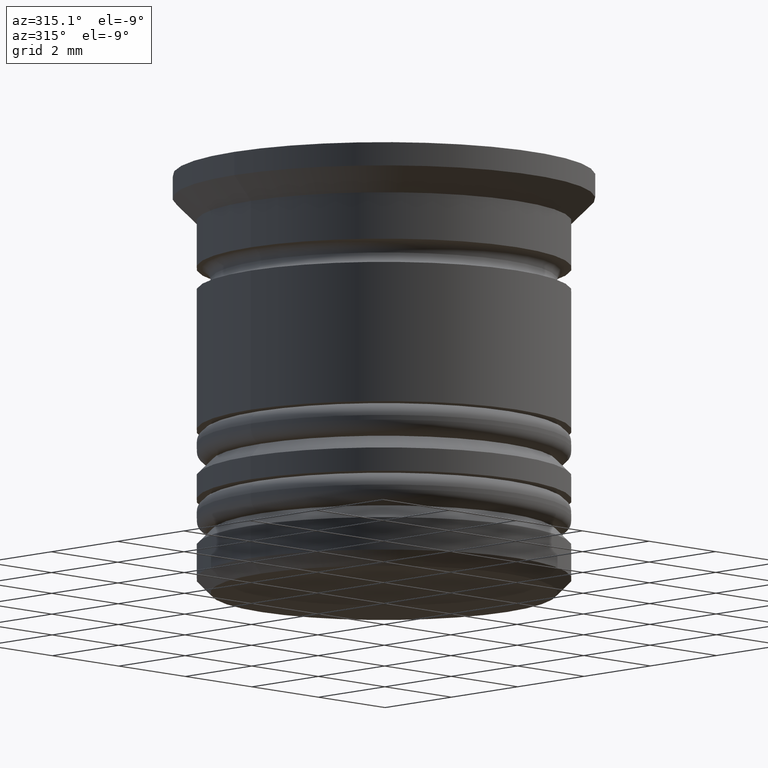
[diagram: clean part render]
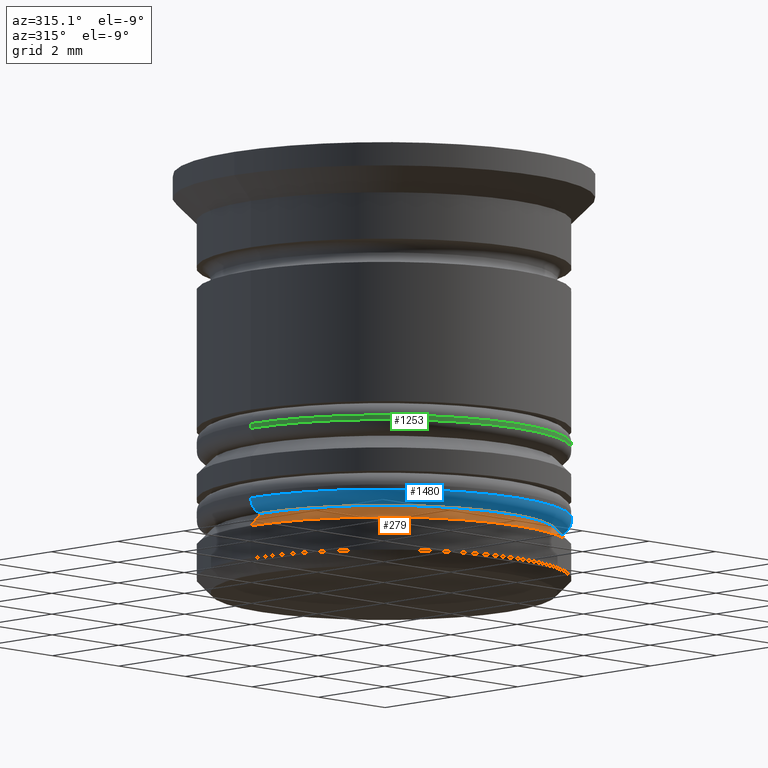
[diagram: same view with three faces highlighted in distinct colors, each labeled with its STEP entity id]
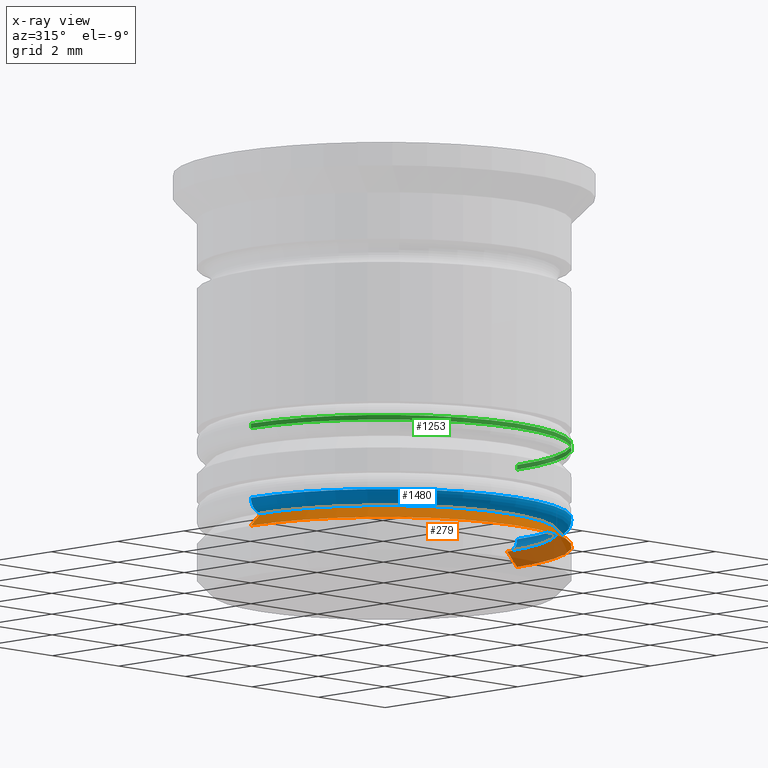
[diagram: x-ray of the same camera — body ghosted, the three highlighted faces saturated]
A machine part, auxiliary view with three faces highlighted in distinct colors.
The next image is the same camera in x-ray (body ghosted, the three faces saturated) — at least one of them is partly hidden behind the body in this view.
Their STEP definitions:

[orange] entity #279 — the highlighted conical surface has half-angle 45 deg.
#36 = VERTEX_POINT ( 'NONE', #1695 ) ;
#77 = ORIENTED_EDGE ( 'NONE', *, *, #1144, .F. ) ;
#101 = EDGE_LOOP ( 'NONE', ( #401, #1672, #1597, #77 ) ) ;
#250 = DIRECTION ( 'NONE',  ( -1.000000000000000000, 0.000000000000000000, 0.000000000000000000 ) ) ;
#279 = ADVANCED_FACE ( 'NONE', ( #729 ), #1567, .T. ) ;
#347 = CARTESIAN_POINT ( 'NONE',  ( 3.499999999999992450, 4.286263797015726734E-16, -7.500000000000000000 ) ) ;
#375 = AXIS2_PLACEMENT_3D ( 'NONE', #989, #1909, #865 ) ;
#401 = ORIENTED_EDGE ( 'NONE', *, *, #593, .F. ) ;
#412 = CIRCLE ( 'NONE', #675, 3.700000000000000178 ) ;
#436 = CARTESIAN_POINT ( 'NONE',  ( 4.000000000000000888, 0.000000000000000000, -8.000000000000003553 ) ) ;
#466 = CARTESIAN_POINT ( 'NONE',  ( 3.700000000000000178, 0.000000000000000000, -7.700000000000005507 ) ) ;
#509 = VECTOR ( 'NONE', #663, 1000.000000000000000 ) ;
#583 = DIRECTION ( 'NONE',  ( -0.000000000000000000, -0.000000000000000000, 1.000000000000000000 ) ) ;
#593 = EDGE_CURVE ( 'NONE', #1903, #959, #1547, .T. ) ;
#663 = DIRECTION ( 'NONE',  ( -0.7071067811865507924, 0.000000000000000000, -0.7071067811865441310 ) ) ;
#675 = AXIS2_PLACEMENT_3D ( 'NONE', #736, #583, #1674 ) ;
#729 = FACE_OUTER_BOUND ( 'NONE', #101, .T. ) ;
#736 = CARTESIAN_POINT ( 'NONE',  ( 0.000000000000000000, 0.000000000000000000, -7.700000000000005507 ) ) ;
#824 = DIRECTION ( 'NONE',  ( 0.7071067811865507924, 8.659560562354974766E-17, -0.7071067811865441310 ) ) ;
#865 = DIRECTION ( 'NONE',  ( -1.000000000000000000, 0.000000000000000000, 0.000000000000000000 ) ) ;
#959 = VERTEX_POINT ( 'NONE', #436 ) ;
#977 = CARTESIAN_POINT ( 'NONE',  ( -4.000000000000000888, 4.898587196589413815E-16, -8.000000000000003553 ) ) ;
#989 = CARTESIAN_POINT ( 'NONE',  ( 0.000000000000000000, 0.000000000000000000, -8.000000000000003553 ) ) ;
#1013 = LINE ( 'NONE', #1755, #509 ) ;
#1097 = EDGE_CURVE ( 'NONE', #36, #1723, #1013, .T. ) ;
#1144 = EDGE_CURVE ( 'NONE', #959, #1723, #1470, .T. ) ;
#1422 = EDGE_CURVE ( 'NONE', #36, #1903, #412, .T. ) ;
#1466 = DIRECTION ( 'NONE',  ( 0.000000000000000000, 0.000000000000000000, -1.000000000000000000 ) ) ;
#1470 = CIRCLE ( 'NONE', #375, 4.000000000000000888 ) ;
#1547 = LINE ( 'NONE', #347, #1997 ) ;
#1567 = CONICAL_SURFACE ( 'NONE', #1806, 3.499999999999992450, 0.7853981633974530530 ) ;
#1597 = ORIENTED_EDGE ( 'NONE', *, *, #1097, .T. ) ;
#1672 = ORIENTED_EDGE ( 'NONE', *, *, #1422, .F. ) ;
#1674 = DIRECTION ( 'NONE',  ( -1.000000000000000000, 0.000000000000000000, 0.000000000000000000 ) ) ;
#1695 = CARTESIAN_POINT ( 'NONE',  ( -3.700000000000000178, 4.531193156845206201E-16, -7.700000000000005507 ) ) ;
#1723 = VERTEX_POINT ( 'NONE', #977 ) ;
#1755 = CARTESIAN_POINT ( 'NONE',  ( -3.499999999999992450, 0.000000000000000000, -7.500000000000000000 ) ) ;
#1806 = AXIS2_PLACEMENT_3D ( 'NONE', #1933, #1466, #250 ) ;
#1903 = VERTEX_POINT ( 'NONE', #466 ) ;
#1909 = DIRECTION ( 'NONE',  ( 0.000000000000000000, 0.000000000000000000, -1.000000000000000000 ) ) ;
#1933 = CARTESIAN_POINT ( 'NONE',  ( 0.000000000000000000, 0.000000000000000000, -7.500000000000000000 ) ) ;
#1997 = VECTOR ( 'NONE', #824, 1000.000000000000000 ) ;

[blue] entity #1480 — the highlighted toroidal blend (fillet) surface has major radius 3.7 mm and minor (blend) radius 0.3 mm.
#55 = VERTEX_POINT ( 'NONE', #788 ) ;
#69 = TOROIDAL_SURFACE ( 'NONE', #109, 3.700000000000001954, 0.2999999999999999889 ) ;
#72 = CARTESIAN_POINT ( 'NONE',  ( 0.000000000000000000, 0.000000000000000000, -7.400000000000005684 ) ) ;
#79 = DIRECTION ( 'NONE',  ( 1.224646799147353207E-16, 1.000000000000000000, -0.000000000000000000 ) ) ;
#85 = FACE_OUTER_BOUND ( 'NONE', #339, .T. ) ;
#109 = AXIS2_PLACEMENT_3D ( 'NONE', #72, #579, #1487 ) ;
#171 = AXIS2_PLACEMENT_3D ( 'NONE', #1984, #588, #1198 ) ;
#307 = VERTEX_POINT ( 'NONE', #1143 ) ;
#339 = EDGE_LOOP ( 'NONE', ( #1962, #1222, #1052, #2012 ) ) ;
#380 = DIRECTION ( 'NONE',  ( 0.000000000000000000, 0.000000000000000000, -1.000000000000000000 ) ) ;
#406 = CARTESIAN_POINT ( 'NONE',  ( 0.000000000000000000, 0.000000000000000000, -7.400000000000005684 ) ) ;
#483 = VERTEX_POINT ( 'NONE', #1809 ) ;
#492 = CARTESIAN_POINT ( 'NONE',  ( 3.700000000000001954, 0.000000000000000000, -7.400000000000005684 ) ) ;
#579 = DIRECTION ( 'NONE',  ( 0.000000000000000000, 0.000000000000000000, 1.000000000000000000 ) ) ;
#588 = DIRECTION ( 'NONE',  ( -0.000000000000000000, -0.000000000000000000, -1.000000000000000000 ) ) ;
#706 = AXIS2_PLACEMENT_3D ( 'NONE', #1678, #79, #721 ) ;
#721 = DIRECTION ( 'NONE',  ( -1.000000000000000000, 1.224646799147353207E-16, 0.000000000000000000 ) ) ;
#788 = CARTESIAN_POINT ( 'NONE',  ( -4.000000000000001776, 4.898587196589415787E-16, -7.400000000000005684 ) ) ;
#805 = AXIS2_PLACEMENT_3D ( 'NONE', #406, #1195, #1349 ) ;
#835 = EDGE_CURVE ( 'NONE', #1869, #483, #2000, .T. ) ;
#1052 = ORIENTED_EDGE ( 'NONE', *, *, #835, .T. ) ;
#1107 = DIRECTION ( 'NONE',  ( 0.000000000000000000, -1.000000000000000000, 0.000000000000000000 ) ) ;
#1143 = CARTESIAN_POINT ( 'NONE',  ( -3.700000000000001954, 4.714890176717312473E-16, -7.700000000000005507 ) ) ;
#1190 = CIRCLE ( 'NONE', #171, 3.700000000000001954 ) ;
#1195 = DIRECTION ( 'NONE',  ( 0.000000000000000000, 0.000000000000000000, 1.000000000000000000 ) ) ;
#1198 = DIRECTION ( 'NONE',  ( 1.000000000000000000, 0.000000000000000000, 0.000000000000000000 ) ) ;
#1222 = ORIENTED_EDGE ( 'NONE', *, *, #1799, .F. ) ;
#1262 = EDGE_CURVE ( 'NONE', #307, #55, #1775, .T. ) ;
#1282 = EDGE_CURVE ( 'NONE', #55, #483, #1673, .T. ) ;
#1349 = DIRECTION ( 'NONE',  ( 1.000000000000000000, 0.000000000000000000, 0.000000000000000000 ) ) ;
#1480 = ADVANCED_FACE ( 'NONE', ( #85 ), #69, .T. ) ;
#1487 = DIRECTION ( 'NONE',  ( 1.000000000000000000, 0.000000000000000000, 0.000000000000000000 ) ) ;
#1673 = CIRCLE ( 'NONE', #805, 4.000000000000001776 ) ;
#1678 = CARTESIAN_POINT ( 'NONE',  ( -3.700000000000001954, 4.531193156845209159E-16, -7.400000000000005684 ) ) ;
#1739 = AXIS2_PLACEMENT_3D ( 'NONE', #492, #1107, #380 ) ;
#1775 = CIRCLE ( 'NONE', #706, 0.2999999999999999334 ) ;
#1799 = EDGE_CURVE ( 'NONE', #1869, #307, #1190, .T. ) ;
#1809 = CARTESIAN_POINT ( 'NONE',  ( 4.000000000000001776, 0.000000000000000000, -7.400000000000005684 ) ) ;
#1869 = VERTEX_POINT ( 'NONE', #1999 ) ;
#1962 = ORIENTED_EDGE ( 'NONE', *, *, #1262, .F. ) ;
#1984 = CARTESIAN_POINT ( 'NONE',  ( 0.000000000000000000, 0.000000000000000000, -7.700000000000005507 ) ) ;
#1999 = CARTESIAN_POINT ( 'NONE',  ( 3.700000000000001954, 0.000000000000000000, -7.700000000000005507 ) ) ;
#2000 = CIRCLE ( 'NONE', #1739, 0.2999999999999999334 ) ;
#2012 = ORIENTED_EDGE ( 'NONE', *, *, #1282, .F. ) ;

[green] entity #1253 — the highlighted cylindrical surface (partial cylindrical patch) has radius 4 mm, axis along (-0, -0, 1).
#60 = DIRECTION ( 'NONE',  ( -1.000000000000000000, 0.000000000000000000, 0.000000000000000000 ) ) ;
#125 = VERTEX_POINT ( 'NONE', #2037 ) ;
#256 = EDGE_LOOP ( 'NONE', ( #1589, #1372, #775, #1363 ) ) ;
#346 = AXIS2_PLACEMENT_3D ( 'NONE', #917, #1377, #1991 ) ;
#454 = CARTESIAN_POINT ( 'NONE',  ( -4.000000000000000888, 4.898587196589413815E-16, -5.900000000000003908 ) ) ;
#498 = LINE ( 'NONE', #1386, #963 ) ;
#567 = CARTESIAN_POINT ( 'NONE',  ( -4.000000000000000888, 4.898587196589413815E-16, -5.799999999999999822 ) ) ;
#586 = EDGE_CURVE ( 'NONE', #1628, #125, #498, .T. ) ;
#600 = AXIS2_PLACEMENT_3D ( 'NONE', #1968, #1630, #916 ) ;
#639 = AXIS2_PLACEMENT_3D ( 'NONE', #1771, #1463, #60 ) ;
#752 = FACE_OUTER_BOUND ( 'NONE', #256, .T. ) ;
#775 = ORIENTED_EDGE ( 'NONE', *, *, #586, .T. ) ;
#784 = VERTEX_POINT ( 'NONE', #454 ) ;
#785 = DIRECTION ( 'NONE',  ( -0.000000000000000000, -0.000000000000000000, 1.000000000000000000 ) ) ;
#794 = LINE ( 'NONE', #1392, #1841 ) ;
#884 = VERTEX_POINT ( 'NONE', #567 ) ;
#916 = DIRECTION ( 'NONE',  ( 1.000000000000000000, 0.000000000000000000, 0.000000000000000000 ) ) ;
#917 = CARTESIAN_POINT ( 'NONE',  ( 0.000000000000000000, 0.000000000000000000, -5.900000000000003908 ) ) ;
#963 = VECTOR ( 'NONE', #1558, 1000.000000000000000 ) ;
#1041 = CYLINDRICAL_SURFACE ( 'NONE', #600, 4.000000000000000888 ) ;
#1253 = ADVANCED_FACE ( 'NONE', ( #752 ), #1041, .T. ) ;
#1363 = ORIENTED_EDGE ( 'NONE', *, *, #1371, .T. ) ;
#1371 = EDGE_CURVE ( 'NONE', #125, #884, #1507, .T. ) ;
#1372 = ORIENTED_EDGE ( 'NONE', *, *, #1920, .T. ) ;
#1377 = DIRECTION ( 'NONE',  ( 0.000000000000000000, 0.000000000000000000, 1.000000000000000000 ) ) ;
#1386 = CARTESIAN_POINT ( 'NONE',  ( 4.000000000000000888, 0.000000000000000000, -17.51370849898476578 ) ) ;
#1392 = CARTESIAN_POINT ( 'NONE',  ( -4.000000000000000888, 4.898587196589413815E-16, -17.51370849898476578 ) ) ;
#1463 = DIRECTION ( 'NONE',  ( 0.000000000000000000, 0.000000000000000000, -1.000000000000000000 ) ) ;
#1507 = CIRCLE ( 'NONE', #639, 4.000000000000000888 ) ;
#1515 = EDGE_CURVE ( 'NONE', #784, #884, #794, .T. ) ;
#1558 = DIRECTION ( 'NONE',  ( -0.000000000000000000, -0.000000000000000000, 1.000000000000000000 ) ) ;
#1589 = ORIENTED_EDGE ( 'NONE', *, *, #1515, .F. ) ;
#1628 = VERTEX_POINT ( 'NONE', #1948 ) ;
#1630 = DIRECTION ( 'NONE',  ( -0.000000000000000000, -0.000000000000000000, 1.000000000000000000 ) ) ;
#1711 = CIRCLE ( 'NONE', #346, 4.000000000000000888 ) ;
#1771 = CARTESIAN_POINT ( 'NONE',  ( 0.000000000000000000, 0.000000000000000000, -5.799999999999999822 ) ) ;
#1841 = VECTOR ( 'NONE', #785, 1000.000000000000000 ) ;
#1920 = EDGE_CURVE ( 'NONE', #784, #1628, #1711, .T. ) ;
#1948 = CARTESIAN_POINT ( 'NONE',  ( 4.000000000000000888, 0.000000000000000000, -5.900000000000003908 ) ) ;
#1968 = CARTESIAN_POINT ( 'NONE',  ( 0.000000000000000000, 0.000000000000000000, -17.51370849898476578 ) ) ;
#1991 = DIRECTION ( 'NONE',  ( 1.000000000000000000, 0.000000000000000000, 0.000000000000000000 ) ) ;
#2037 = CARTESIAN_POINT ( 'NONE',  ( 4.000000000000000888, 0.000000000000000000, -5.799999999999999822 ) ) ;